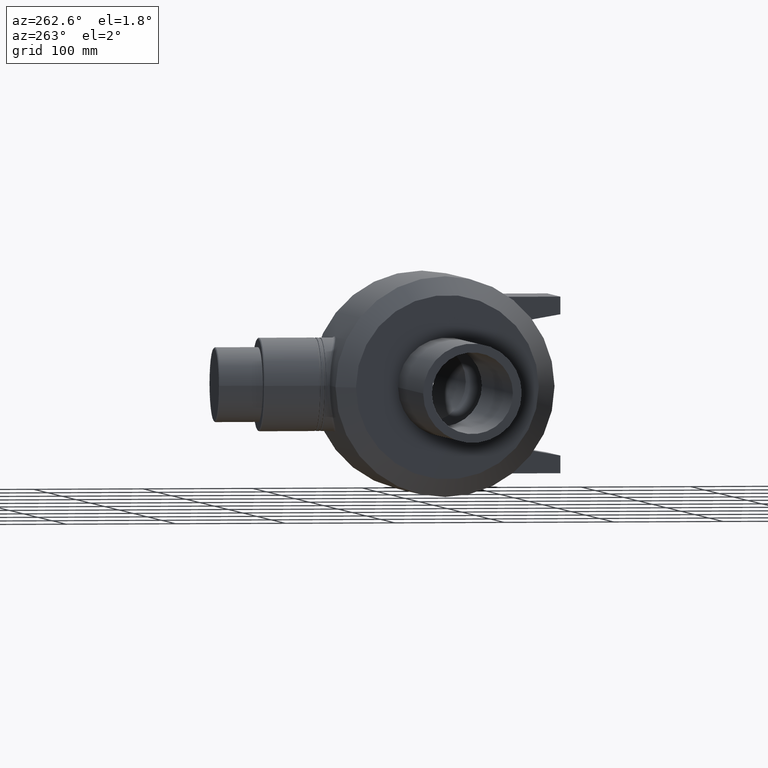
[diagram: clean part render]
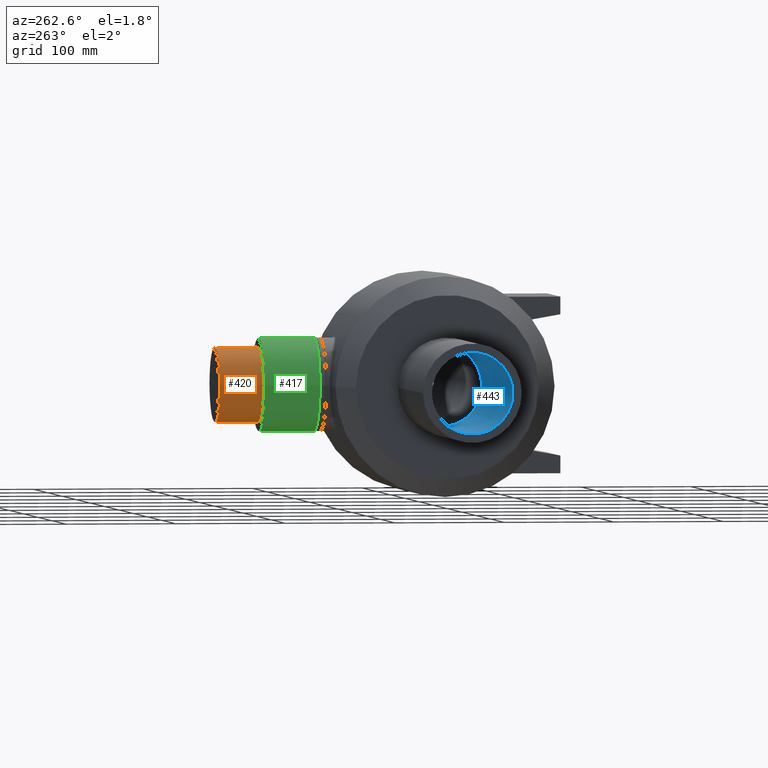
[diagram: same view with three faces highlighted in distinct colors, each labeled with its STEP entity id]
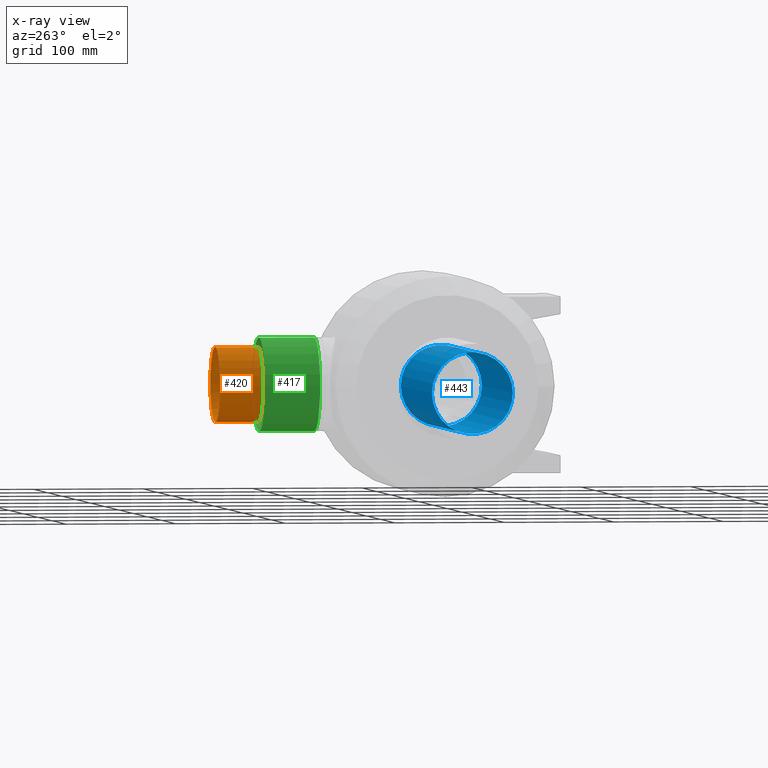
[diagram: x-ray of the same camera — body ghosted, the three highlighted faces saturated]
A machine part, auxiliary view with three faces highlighted in distinct colors.
The next image is the same camera in x-ray (body ghosted, the three faces saturated) — at least one of them is partly hidden behind the body in this view.
Their STEP definitions:

[orange] entity #420 — the highlighted cylindrical surface (bore or boss wall) has radius 34 mm, axis along (0, 1, 0).
#87=FACE_BOUND('',#161,.T.);
#106=CYLINDRICAL_SURFACE('',#468,34.);
#119=FACE_OUTER_BOUND('',#160,.T.);
#160=EDGE_LOOP('',(#341));
#161=EDGE_LOOP('',(#342));
#214=CIRCLE('',#464,34.);
#215=CIRCLE('',#466,34.);
#245=VERTEX_POINT('',#856);
#246=VERTEX_POINT('',#859);
#285=EDGE_CURVE('',#245,#245,#214,.T.);
#286=EDGE_CURVE('',#246,#246,#215,.T.);
#341=ORIENTED_EDGE('',*,*,#285,.T.);
#342=ORIENTED_EDGE('',*,*,#286,.F.);
#420=ADVANCED_FACE('',(#119,#87),#106,.T.);
#464=AXIS2_PLACEMENT_3D('',#857,#544,#545);
#466=AXIS2_PLACEMENT_3D('',#860,#548,#549);
#468=AXIS2_PLACEMENT_3D('',#863,#552,#553);
#544=DIRECTION('center_axis',(0.,1.,0.));
#545=DIRECTION('ref_axis',(1.,0.,0.));
#548=DIRECTION('center_axis',(0.,1.,0.));
#549=DIRECTION('ref_axis',(1.,0.,0.));
#552=DIRECTION('center_axis',(0.,1.,0.));
#553=DIRECTION('ref_axis',(-1.,0.,0.));
#856=CARTESIAN_POINT('',(-34.,160.,0.));
#857=CARTESIAN_POINT('Origin',(0.,160.,0.));
#859=CARTESIAN_POINT('',(-34.,199.15,4.16379911710101E-15));
#860=CARTESIAN_POINT('Origin',(0.,199.15,0.));
#863=CARTESIAN_POINT('Origin',(0.,180.,0.));

[blue] entity #443 — the highlighted cylindrical surface (bore or boss wall) has radius 37 mm, axis along (1, 0, 0).
#100=FACE_BOUND('',#196,.T.);
#110=CYLINDRICAL_SURFACE('',#501,37.);
#141=FACE_OUTER_BOUND('',#195,.T.);
#195=EDGE_LOOP('',(#406));
#196=EDGE_LOOP('',(#407));
#226=CIRCLE('',#500,37.);
#227=CIRCLE('',#502,37.);
#265=VERTEX_POINT('',#928);
#266=VERTEX_POINT('',#931);
#313=EDGE_CURVE('',#265,#265,#226,.T.);
#314=EDGE_CURVE('',#266,#266,#227,.T.);
#406=ORIENTED_EDGE('',*,*,#314,.F.);
#407=ORIENTED_EDGE('',*,*,#313,.T.);
#443=ADVANCED_FACE('',(#141,#100),#110,.F.);
#500=AXIS2_PLACEMENT_3D('',#929,#632,#633);
#501=AXIS2_PLACEMENT_3D('',#930,#634,#635);
#502=AXIS2_PLACEMENT_3D('',#932,#636,#637);
#632=DIRECTION('center_axis',(1.,0.,0.));
#633=DIRECTION('ref_axis',(0.,0.,-1.));
#634=DIRECTION('center_axis',(1.,0.,0.));
#635=DIRECTION('ref_axis',(0.,1.,0.));
#636=DIRECTION('center_axis',(1.,0.,0.));
#637=DIRECTION('ref_axis',(0.,0.,-1.));
#928=CARTESIAN_POINT('',(-56.455734872553,37.,0.));
#929=CARTESIAN_POINT('Origin',(-56.455734872553,0.,0.));
#930=CARTESIAN_POINT('Origin',(-165.727867436277,0.,0.));
#931=CARTESIAN_POINT('',(-275.,37.,0.));
#932=CARTESIAN_POINT('Origin',(-275.,0.,0.));

[green] entity #417 — the highlighted cylindrical surface (bore or boss wall) has radius 42.5 mm, axis along (0, 1, 0).
#84=FACE_BOUND('',#155,.T.);
#105=CYLINDRICAL_SURFACE('',#461,42.5);
#116=FACE_OUTER_BOUND('',#154,.T.);
#154=EDGE_LOOP('',(#335));
#155=EDGE_LOOP('',(#336));
#211=CIRCLE('',#459,42.5);
#213=CIRCLE('',#462,42.5);
#242=VERTEX_POINT('',#848);
#244=VERTEX_POINT('',#853);
#282=EDGE_CURVE('',#242,#242,#211,.T.);
#284=EDGE_CURVE('',#244,#244,#213,.T.);
#335=ORIENTED_EDGE('',*,*,#284,.T.);
#336=ORIENTED_EDGE('',*,*,#282,.F.);
#417=ADVANCED_FACE('',(#116,#84),#105,.T.);
#459=AXIS2_PLACEMENT_3D('',#849,#534,#535);
#461=AXIS2_PLACEMENT_3D('',#852,#538,#539);
#462=AXIS2_PLACEMENT_3D('',#854,#540,#541);
#534=DIRECTION('center_axis',(0.,1.,0.));
#535=DIRECTION('ref_axis',(1.,0.,0.));
#538=DIRECTION('center_axis',(0.,1.,0.));
#539=DIRECTION('ref_axis',(-1.,0.,0.));
#540=DIRECTION('center_axis',(0.,1.,0.));
#541=DIRECTION('ref_axis',(1.,0.,0.));
#848=CARTESIAN_POINT('',(-42.5,159.15,5.20474889637625E-15));
#849=CARTESIAN_POINT('Origin',(0.,159.15,0.));
#852=CARTESIAN_POINT('Origin',(0.,134.425,0.));
#853=CARTESIAN_POINT('',(-42.5,108.85,0.));
#854=CARTESIAN_POINT('Origin',(0.,108.85,0.));